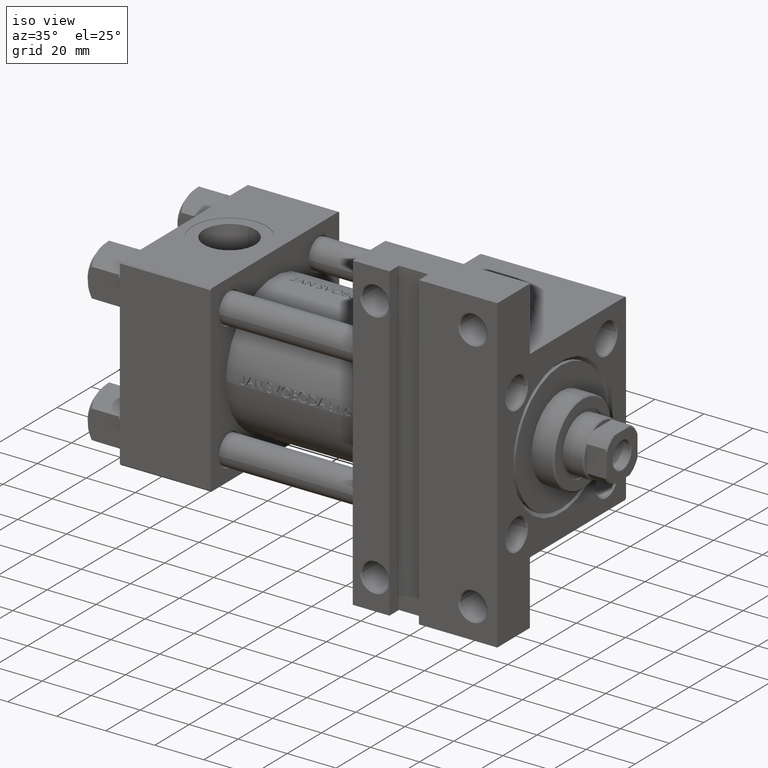
[diagram: clean part render]
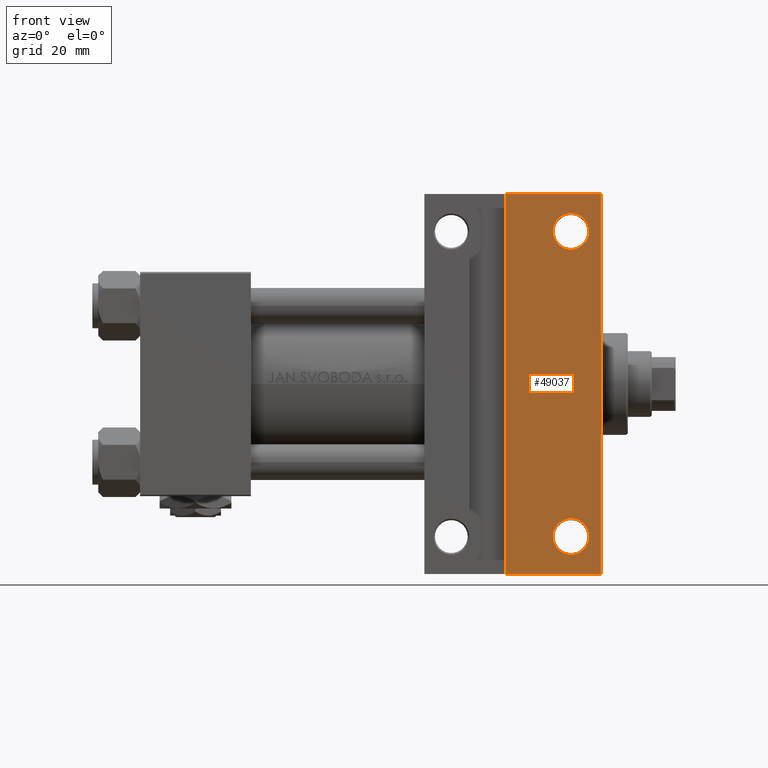
[diagram: tour spotlight — one face highlighted and labeled with its STEP entity id]
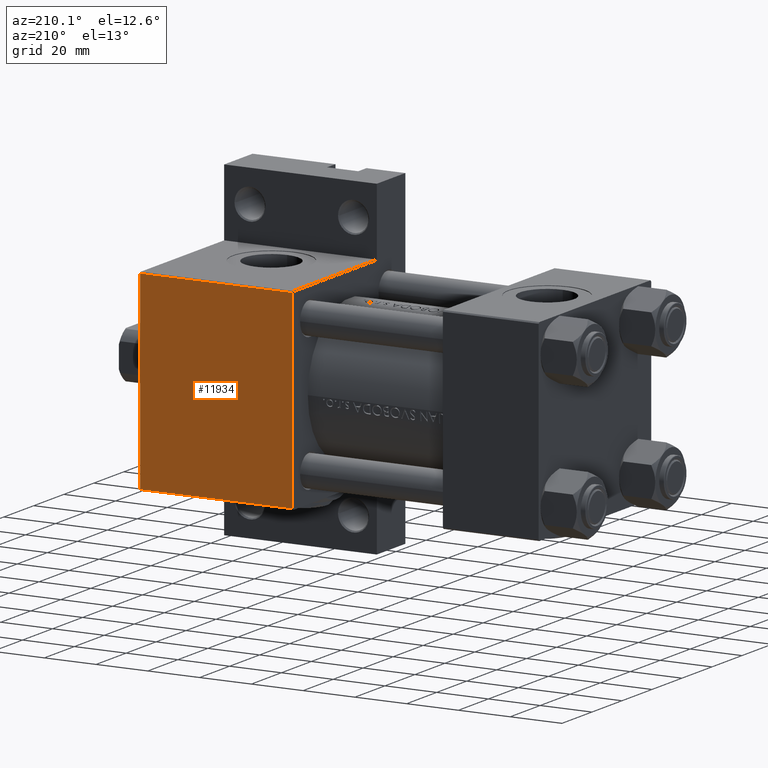
[diagram: tour spotlight — one face highlighted and labeled with its STEP entity id]
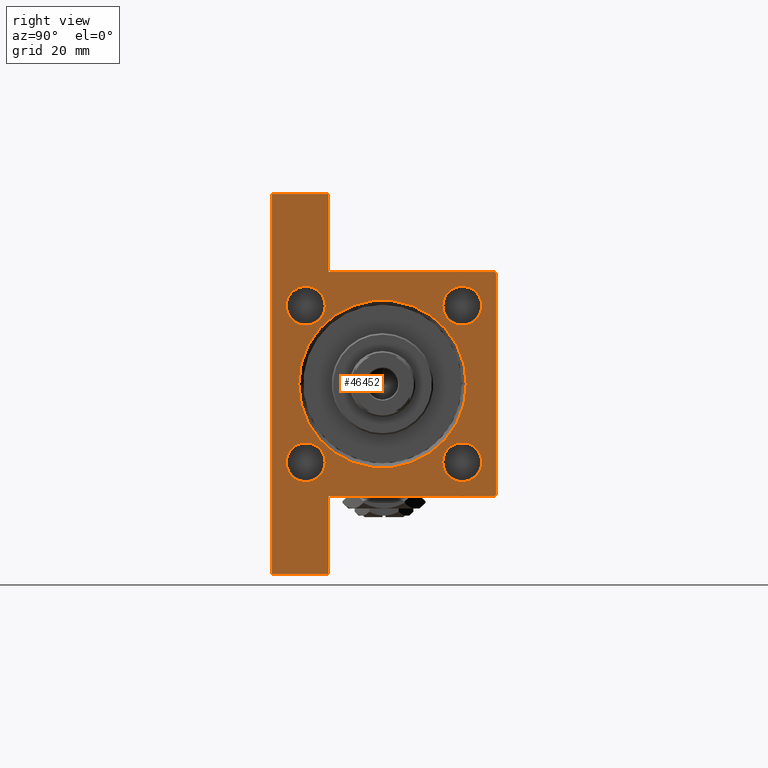
[diagram: tour spotlight — one face highlighted and labeled with its STEP entity id]
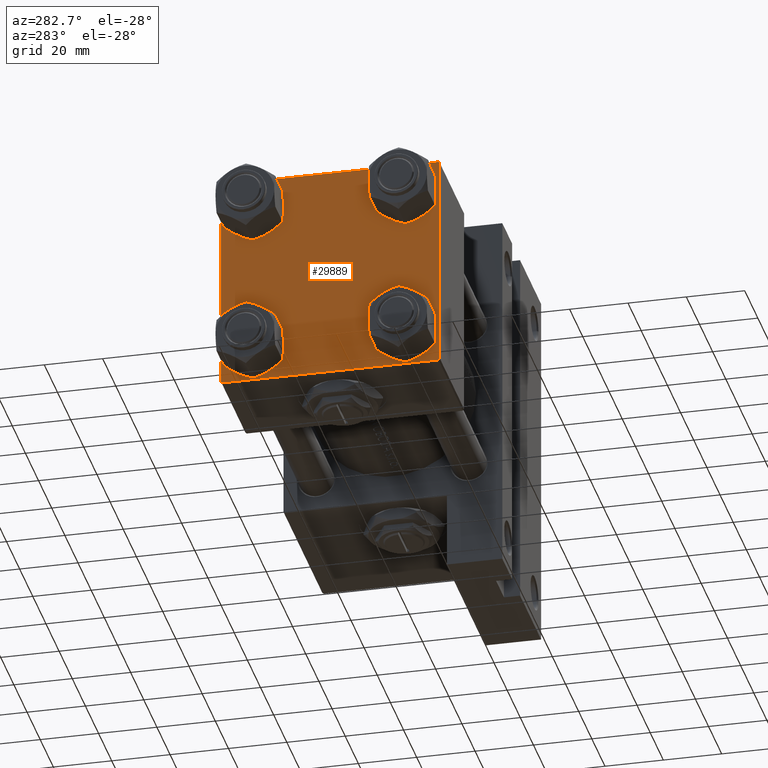
[diagram: tour spotlight — one face highlighted and labeled with its STEP entity id]
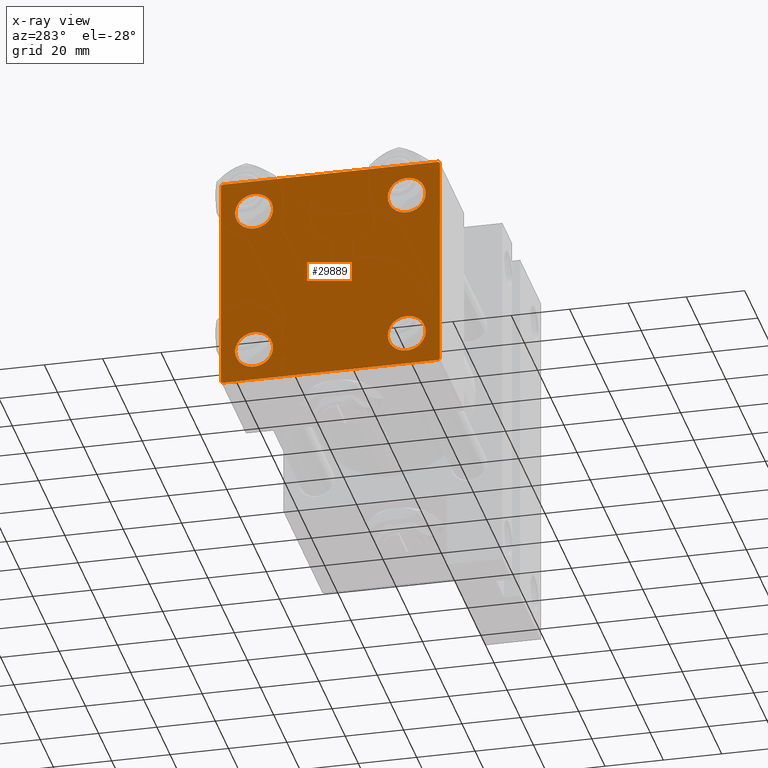
[diagram: x-ray of the same camera — body ghosted, this tour face saturated]
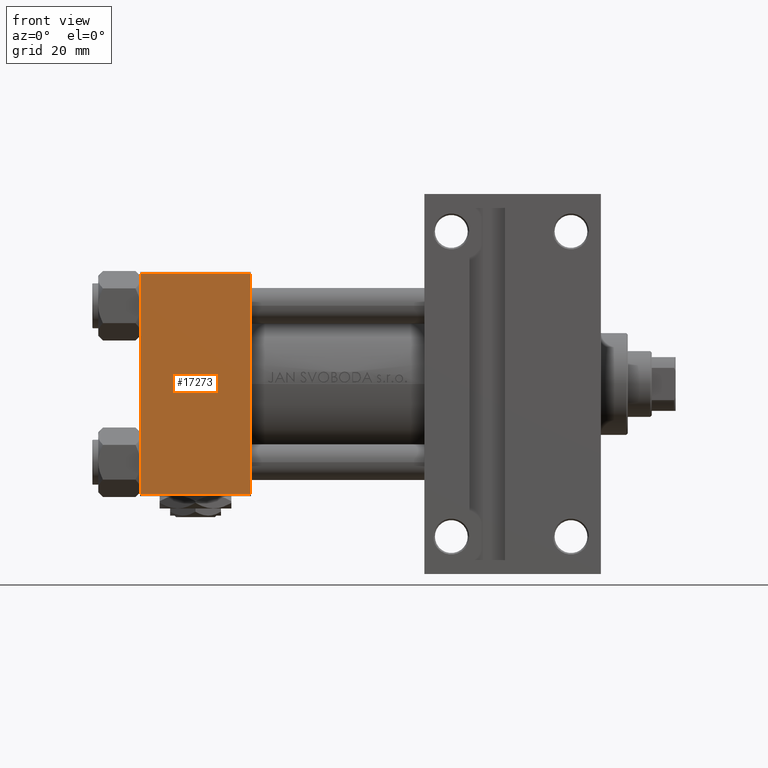
[diagram: tour spotlight — one face highlighted and labeled with its STEP entity id]
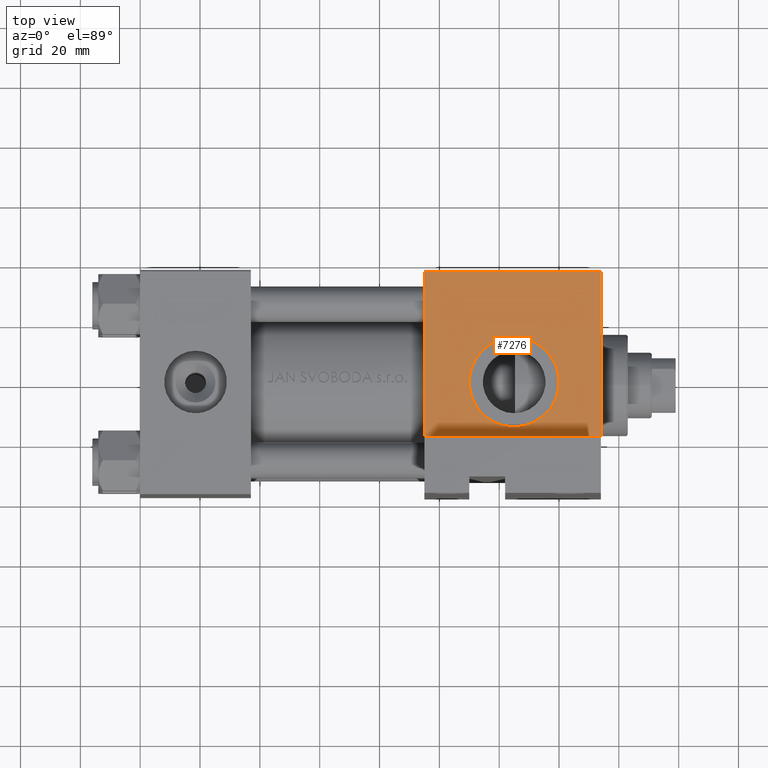
[diagram: tour spotlight — one face highlighted and labeled with its STEP entity id]
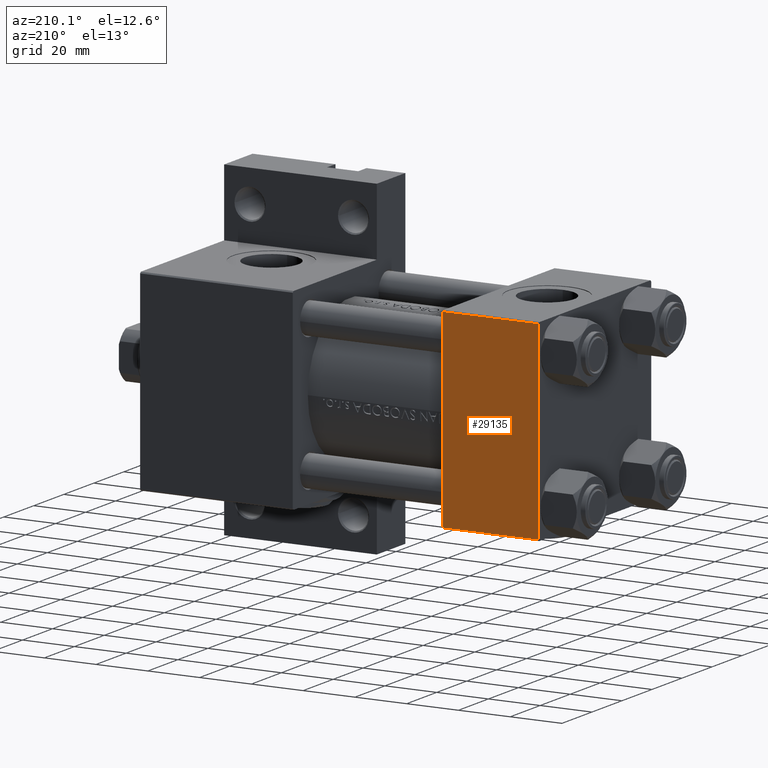
[diagram: tour spotlight — one face highlighted and labeled with its STEP entity id]
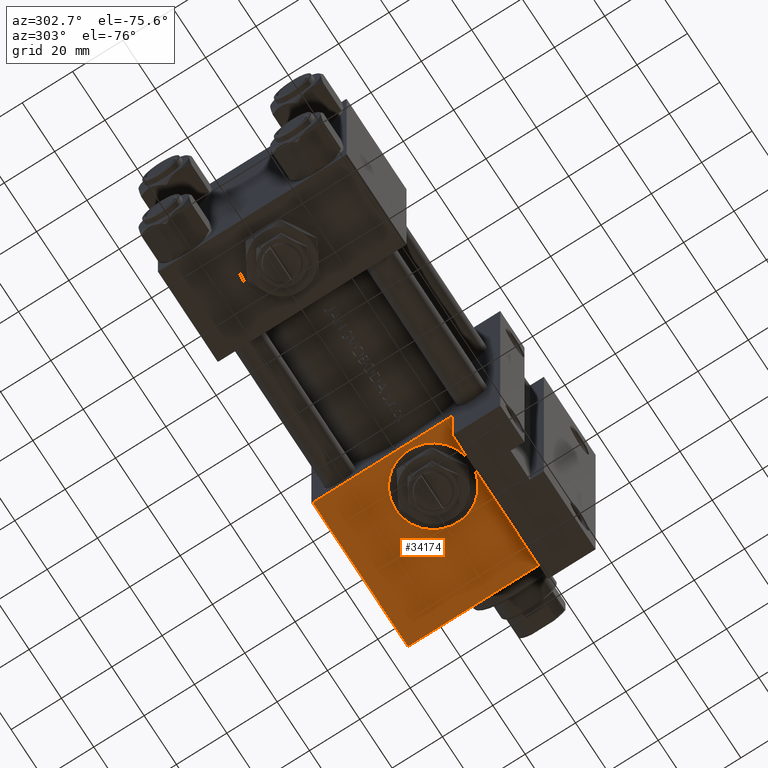
[diagram: tour spotlight — one face highlighted and labeled with its STEP entity id]
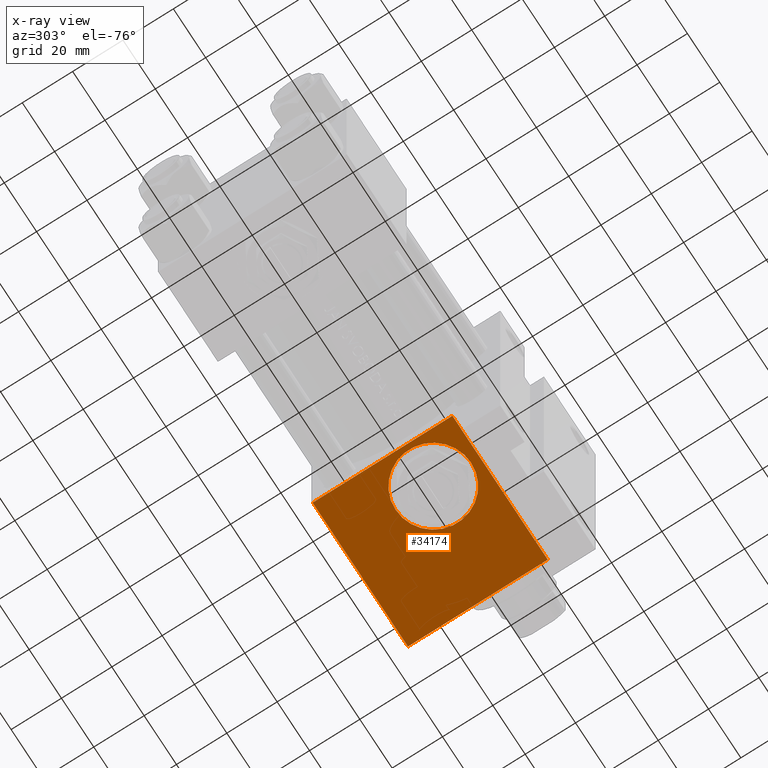
[diagram: x-ray of the same camera — body ghosted, this tour face saturated]
A machine part: a face-by-face anatomy tour. The part has 1199 B-rep faces; the first image is the clean iso view, then the 8 largest visible faces are spotlighted one at a time (largest first), each with its STEP entity span.

Face 1 — front view, entity #49037. In plain terms, the highlighted planar face has unit normal (0, -1, 0).
Definition (entity closure, byte-faithful):
#526 = DIRECTION ( 'NONE',  ( -0.000000000000000000, -0.000000000000000000, 1.000000000000000000 ) ) ;
#574 = DIRECTION ( 'NONE',  ( -0.000000000000000000, -0.000000000000000000, 1.000000000000000000 ) ) ;
#647 = EDGE_LOOP ( 'NONE', ( #33340, #16382 ) ) ;
#1833 = CARTESIAN_POINT ( 'NONE',  ( 154.0000000000000000, 37.50000000000000000, -37.50000000000000000 ) ) ;
#1846 = ORIENTED_EDGE ( 'NONE', *, *, #23392, .T. ) ;
#1998 = DIRECTION ( 'NONE',  ( -0.000000000000000000, -0.000000000000000000, 1.000000000000000000 ) ) ;
#2243 = DIRECTION ( 'NONE',  ( -1.000000000000000000, 0.000000000000000000, 0.000000000000000000 ) ) ;
#3293 = AXIS2_PLACEMENT_3D ( 'NONE', #45177, #1998, #2243 ) ;
#3605 = CARTESIAN_POINT ( 'NONE',  ( 143.9999999999999716, 51.00000000000000000, -37.50000000000000000 ) ) ;
#3850 = VERTEX_POINT ( 'NONE', #7506 ) ;
#3936 = EDGE_LOOP ( 'NONE', ( #35876, #29696 ) ) ;
#4034 = DIRECTION ( 'NONE',  ( -1.000000000000000000, 0.000000000000000000, 0.000000000000000000 ) ) ;
#4488 = AXIS2_PLACEMENT_3D ( 'NONE', #22050, #40896, #29334 ) ;
#5734 = FACE_OUTER_BOUND ( 'NONE', #19948, .T. ) ;
#6302 = CARTESIAN_POINT ( 'NONE',  ( 138.0004999999999598, -51.00000000000000000, -37.50000000000000000 ) ) ;
#7506 = CARTESIAN_POINT ( 'NONE',  ( 154.0000000000000000, 63.50000000000000000, -37.50000000000000000 ) ) ;
#8342 = VECTOR ( 'NONE', #32944, 1000.000000000000000 ) ;
#8541 = CARTESIAN_POINT ( 'NONE',  ( 143.9999999999999716, -51.00000000000000000, -37.50000000000000000 ) ) ;
#9921 = VECTOR ( 'NONE', #15415, 1000.000000000000000 ) ;
#10214 = CIRCLE ( 'NONE', #39070, 5.999499999999990507 ) ;
#10701 = CIRCLE ( 'NONE', #40381, 5.999499999999990507 ) ;
#12525 = EDGE_CURVE ( 'NONE', #48733, #47232, #10214, .T. ) ;
#13864 = LINE ( 'NONE', #1833, #8342 ) ;
#14608 = CARTESIAN_POINT ( 'NONE',  ( 138.0004999999999598, 51.00000000000000000, -37.50000000000000000 ) ) ;
#15196 = DIRECTION ( 'NONE',  ( -0.000000000000000000, -1.000000000000000000, -0.000000000000000000 ) ) ;
#15415 = DIRECTION ( 'NONE',  ( -1.000000000000000000, 4.704334850106596780E-16, -0.000000000000000000 ) ) ;
#16382 = ORIENTED_EDGE ( 'NONE', *, *, #12525, .T. ) ;
#16864 = DIRECTION ( 'NONE',  ( 1.000000000000000000, 0.000000000000000000, 0.000000000000000000 ) ) ;
#17122 = LINE ( 'NONE', #43282, #38318 ) ;
#18334 = CARTESIAN_POINT ( 'NONE',  ( 149.9994999999999550, 51.00000000000000000, -37.50000000000000000 ) ) ;
#18639 = VERTEX_POINT ( 'NONE', #38806 ) ;
#19948 = EDGE_LOOP ( 'NONE', ( #20858, #26588, #1846, #39757 ) ) ;
#20542 = CARTESIAN_POINT ( 'NONE',  ( 153.9999999999999716, -63.50000000000002842, -37.50000000000000000 ) ) ;
#20711 = AXIS2_PLACEMENT_3D ( 'NONE', #8541, #526, #4034 ) ;
#20858 = ORIENTED_EDGE ( 'NONE', *, *, #38704, .F. ) ;
#21045 = PLANE ( 'NONE',  #4488 ) ;
#21546 = FACE_BOUND ( 'NONE', #647, .T. ) ;
#22050 = CARTESIAN_POINT ( 'NONE',  ( 154.0000000000000000, 37.50000000000000000, -37.50000000000000000 ) ) ;
#22523 = CIRCLE ( 'NONE', #3293, 5.999499999999990507 ) ;
#22911 = DIRECTION ( 'NONE',  ( -1.000000000000000000, 0.000000000000000000, 0.000000000000000000 ) ) ;
#22965 = CARTESIAN_POINT ( 'NONE',  ( 94.99999999999998579, -63.50000000000000000, -37.50000000000000000 ) ) ;
#23392 = EDGE_CURVE ( 'NONE', #3850, #37176, #13864, .T. ) ;
#25178 = VERTEX_POINT ( 'NONE', #6302 ) ;
#25285 = EDGE_CURVE ( 'NONE', #25178, #18639, #26254, .T. ) ;
#26254 = CIRCLE ( 'NONE', #20711, 5.999499999999990507 ) ;
#26588 = ORIENTED_EDGE ( 'NONE', *, *, #43273, .T. ) ;
#29334 = DIRECTION ( 'NONE',  ( -1.000000000000000000, 0.000000000000000000, -0.000000000000000000 ) ) ;
#29398 = EDGE_CURVE ( 'NONE', #47232, #48733, #22523, .T. ) ;
#29554 = CARTESIAN_POINT ( 'NONE',  ( 122.0000000000000000, 63.50000000000000000, -37.50000000000000000 ) ) ;
#29696 = ORIENTED_EDGE ( 'NONE', *, *, #38594, .T. ) ;
#32277 = VERTEX_POINT ( 'NONE', #29554 ) ;
#32807 = DIRECTION ( 'NONE',  ( -0.000000000000000000, -0.000000000000000000, 1.000000000000000000 ) ) ;
#32944 = DIRECTION ( 'NONE',  ( 0.000000000000000000, -1.000000000000000000, 0.000000000000000000 ) ) ;
#33340 = ORIENTED_EDGE ( 'NONE', *, *, #29398, .T. ) ;
#34678 = CARTESIAN_POINT ( 'NONE',  ( 122.0000000000000000, -63.50000000000000000, -37.50000000000000000 ) ) ;
#35020 = LINE ( 'NONE', #22965, #9921 ) ;
#35302 = EDGE_CURVE ( 'NONE', #37176, #36044, #35020, .T. ) ;
#35876 = ORIENTED_EDGE ( 'NONE', *, *, #25285, .T. ) ;
#36044 = VERTEX_POINT ( 'NONE', #34678 ) ;
#36363 = VECTOR ( 'NONE', #15196, 1000.000000000000000 ) ;
#36627 = FACE_BOUND ( 'NONE', #3936, .T. ) ;
#37176 = VERTEX_POINT ( 'NONE', #20542 ) ;
#37591 = DIRECTION ( 'NONE',  ( -1.000000000000000000, 0.000000000000000000, 0.000000000000000000 ) ) ;
#38318 = VECTOR ( 'NONE', #16864, 1000.000000000000000 ) ;
#38594 = EDGE_CURVE ( 'NONE', #18639, #25178, #10701, .T. ) ;
#38704 = EDGE_CURVE ( 'NONE', #32277, #36044, #38816, .T. ) ;
#38806 = CARTESIAN_POINT ( 'NONE',  ( 149.9994999999999550, -51.00000000000000000, -37.50000000000000000 ) ) ;
#38816 = LINE ( 'NONE', #49408, #36363 ) ;
#39070 = AXIS2_PLACEMENT_3D ( 'NONE', #3605, #574, #22911 ) ;
#39757 = ORIENTED_EDGE ( 'NONE', *, *, #35302, .T. ) ;
#40381 = AXIS2_PLACEMENT_3D ( 'NONE', #47921, #32807, #37591 ) ;
#40896 = DIRECTION ( 'NONE',  ( 0.000000000000000000, 0.000000000000000000, -1.000000000000000000 ) ) ;
#43273 = EDGE_CURVE ( 'NONE', #32277, #3850, #17122, .T. ) ;
#43282 = CARTESIAN_POINT ( 'NONE',  ( 95.00000000000000000, 63.50000000000000000, -37.50000000000000000 ) ) ;
#45177 = CARTESIAN_POINT ( 'NONE',  ( 143.9999999999999716, 51.00000000000000000, -37.50000000000000000 ) ) ;
#47232 = VERTEX_POINT ( 'NONE', #14608 ) ;
#47921 = CARTESIAN_POINT ( 'NONE',  ( 143.9999999999999716, -51.00000000000000000, -37.50000000000000000 ) ) ;
#48733 = VERTEX_POINT ( 'NONE', #18334 ) ;
#49037 = ADVANCED_FACE ( 'NONE', ( #5734, #36627, #21546 ), #21045, .T. ) ;
#49408 = CARTESIAN_POINT ( 'NONE',  ( 122.0000000000000000, -63.50000000000000000, -37.50000000000000000 ) ) ;

Face 2 — auxiliary view, entity #11934. In plain terms, the highlighted planar face has unit normal (0, -1, -0).
Definition (entity closure, byte-faithful):
#1059 = EDGE_CURVE ( 'NONE', #13842, #29581, #30758, .T. ) ;
#1283 = CARTESIAN_POINT ( 'NONE',  ( 95.00000000000000000, 37.00000000000000000, 37.49999999999999289 ) ) ;
#1525 = DIRECTION ( 'NONE',  ( -1.000000000000000000, 0.000000000000000000, 0.000000000000000000 ) ) ;
#3470 = CARTESIAN_POINT ( 'NONE',  ( 154.0000000000000000, 37.00000000000000000, 37.49999999999999289 ) ) ;
#3694 = DIRECTION ( 'NONE',  ( 0.000000000000000000, -1.000000000000000000, -1.850371707708594316E-16 ) ) ;
#4504 = EDGE_CURVE ( 'NONE', #13842, #27001, #40191, .T. ) ;
#5079 = VECTOR ( 'NONE', #3694, 1000.000000000000000 ) ;
#5845 = CARTESIAN_POINT ( 'NONE',  ( 95.00000000000000000, 37.00000000000000000, 37.49999999999999289 ) ) ;
#6079 = VECTOR ( 'NONE', #1525, 1000.000000000000000 ) ;
#8822 = PLANE ( 'NONE',  #11982 ) ;
#11934 = ADVANCED_FACE ( 'NONE', ( #23646 ), #8822, .F. ) ;
#11982 = AXIS2_PLACEMENT_3D ( 'NONE', #19868, #39962, #12601 ) ;
#12601 = DIRECTION ( 'NONE',  ( 0.000000000000000000, 1.000000000000000000, 1.850371707708594316E-16 ) ) ;
#12735 = CARTESIAN_POINT ( 'NONE',  ( 154.0000000000000000, -36.99999999999997158, 37.49999999999997868 ) ) ;
#13842 = VERTEX_POINT ( 'NONE', #3470 ) ;
#15689 = DIRECTION ( 'NONE',  ( 0.000000000000000000, -1.000000000000000000, -1.850371707708594316E-16 ) ) ;
#19042 = EDGE_CURVE ( 'NONE', #44922, #29581, #47840, .T. ) ;
#19423 = ORIENTED_EDGE ( 'NONE', *, *, #1059, .F. ) ;
#19868 = CARTESIAN_POINT ( 'NONE',  ( 154.0000000000000000, 37.50000000000000000, 37.49999999999999289 ) ) ;
#20932 = DIRECTION ( 'NONE',  ( 1.000000000000000000, 0.000000000000000000, 0.000000000000000000 ) ) ;
#20963 = ORIENTED_EDGE ( 'NONE', *, *, #4504, .T. ) ;
#23646 = FACE_OUTER_BOUND ( 'NONE', #42421, .T. ) ;
#25787 = CARTESIAN_POINT ( 'NONE',  ( 95.00000000000000000, 37.50000000000000000, 37.49999999999999289 ) ) ;
#26780 = LINE ( 'NONE', #25787, #5079 ) ;
#26828 = VECTOR ( 'NONE', #20932, 1000.000000000000000 ) ;
#27001 = VERTEX_POINT ( 'NONE', #5845 ) ;
#27007 = CARTESIAN_POINT ( 'NONE',  ( 154.0000000000000000, 37.50000000000000000, 37.49999999999999289 ) ) ;
#29581 = VERTEX_POINT ( 'NONE', #12735 ) ;
#30531 = CARTESIAN_POINT ( 'NONE',  ( 95.00000000000000000, -36.99999999999997158, 37.49999999999997868 ) ) ;
#30758 = LINE ( 'NONE', #27007, #48400 ) ;
#35712 = EDGE_CURVE ( 'NONE', #27001, #44922, #26780, .T. ) ;
#37971 = ORIENTED_EDGE ( 'NONE', *, *, #35712, .T. ) ;
#39962 = DIRECTION ( 'NONE',  ( 0.000000000000000000, 1.850371707708594316E-16, -1.000000000000000000 ) ) ;
#40191 = LINE ( 'NONE', #1283, #6079 ) ;
#42421 = EDGE_LOOP ( 'NONE', ( #19423, #20963, #37971, #48543 ) ) ;
#43563 = CARTESIAN_POINT ( 'NONE',  ( 154.0000000000000000, -36.99999999999997158, 37.49999999999997868 ) ) ;
#44922 = VERTEX_POINT ( 'NONE', #30531 ) ;
#47840 = LINE ( 'NONE', #43563, #26828 ) ;
#48400 = VECTOR ( 'NONE', #15689, 1000.000000000000000 ) ;
#48543 = ORIENTED_EDGE ( 'NONE', *, *, #19042, .T. ) ;

Face 3 — right view, entity #46452. In plain terms, the highlighted planar face has unit normal (-1, 0, 0).
Definition (entity closure, byte-faithful):
#262 = ORIENTED_EDGE ( 'NONE', *, *, #2590, .T. ) ;
#466 = EDGE_CURVE ( 'NONE', #8834, #42672, #44218, .T. ) ;
#719 = EDGE_CURVE ( 'NONE', #12675, #9624, #44630, .T. ) ;
#834 = LINE ( 'NONE', #45801, #27707 ) ;
#1028 = CARTESIAN_POINT ( 'NONE',  ( 153.9999999999999716, -63.50000000000002842, -18.50000000000000000 ) ) ;
#1059 = EDGE_CURVE ( 'NONE', #13842, #29581, #30758, .T. ) ;
#1184 = CARTESIAN_POINT ( 'NONE',  ( 154.0000000000000000, 0.000000000000000000, -0.5000000000000004441 ) ) ;
#1399 = VECTOR ( 'NONE', #7183, 1000.000000000000000 ) ;
#1518 = FACE_BOUND ( 'NONE', #48561, .T. ) ;
#1545 = CARTESIAN_POINT ( 'NONE',  ( 154.0000000000000000, -37.50000000000000000, 36.99999999999997868 ) ) ;
#1833 = CARTESIAN_POINT ( 'NONE',  ( 154.0000000000000000, 37.50000000000000000, -37.50000000000000000 ) ) ;
#1848 = CARTESIAN_POINT ( 'NONE',  ( 154.0000000000000000, -26.14999999999999147, 32.64999999999999858 ) ) ;
#1934 = DIRECTION ( 'NONE',  ( 0.000000000000000000, 0.000000000000000000, 1.000000000000000000 ) ) ;
#2280 = EDGE_CURVE ( 'NONE', #33655, #37176, #834, .T. ) ;
#2590 = EDGE_CURVE ( 'NONE', #24446, #16361, #29169, .T. ) ;
#2728 = VERTEX_POINT ( 'NONE', #35414 ) ;
#3470 = CARTESIAN_POINT ( 'NONE',  ( 154.0000000000000000, 37.00000000000000000, 37.49999999999999289 ) ) ;
#3471 = DIRECTION ( 'NONE',  ( -1.000000000000000000, -0.000000000000000000, 0.000000000000000000 ) ) ;
#3490 = VECTOR ( 'NONE', #7738, 1000.000000000000000 ) ;
#3850 = VERTEX_POINT ( 'NONE', #7506 ) ;
#4227 = AXIS2_PLACEMENT_3D ( 'NONE', #20787, #43928, #21027 ) ;
#4461 = DIRECTION ( 'NONE',  ( 0.000000000000000000, 0.000000000000000000, 1.000000000000000000 ) ) ;
#4977 = EDGE_CURVE ( 'NONE', #24446, #3850, #17463, .T. ) ;
#5477 = VERTEX_POINT ( 'NONE', #1545 ) ;
#5664 = ORIENTED_EDGE ( 'NONE', *, *, #14296, .T. ) ;
#5933 = DIRECTION ( 'NONE',  ( -1.000000000000000000, -0.000000000000000000, 0.000000000000000000 ) ) ;
#6023 = FACE_BOUND ( 'NONE', #28668, .T. ) ;
#6718 = EDGE_CURVE ( 'NONE', #45387, #33655, #22314, .T. ) ;
#7105 = LINE ( 'NONE', #15554, #24378 ) ;
#7183 = DIRECTION ( 'NONE',  ( 0.000000000000000000, 0.000000000000000000, -1.000000000000000000 ) ) ;
#7506 = CARTESIAN_POINT ( 'NONE',  ( 154.0000000000000000, 63.50000000000000000, -37.50000000000000000 ) ) ;
#7507 = CIRCLE ( 'NONE', #10707, 6.500000000000002665 ) ;
#7738 = DIRECTION ( 'NONE',  ( -0.000000000000000000, -1.000000000000000000, -0.000000000000000000 ) ) ;
#7776 = CARTESIAN_POINT ( 'NONE',  ( 153.9999999999999716, 37.50000000000000711, -18.50000000000000000 ) ) ;
#8342 = VECTOR ( 'NONE', #32944, 1000.000000000000000 ) ;
#8472 = DIRECTION ( 'NONE',  ( -1.000000000000000000, -0.000000000000000000, 0.000000000000000000 ) ) ;
#8834 = VERTEX_POINT ( 'NONE', #37715 ) ;
#9577 = CARTESIAN_POINT ( 'NONE',  ( 154.0000000000000000, 0.000000000000000000, -28.49999999999999645 ) ) ;
#9580 = EDGE_CURVE ( 'NONE', #34552, #46078, #42597, .T. ) ;
#9624 = VERTEX_POINT ( 'NONE', #28770 ) ;
#10407 = ORIENTED_EDGE ( 'NONE', *, *, #9580, .T. ) ;
#10421 = DIRECTION ( 'NONE',  ( 0.000000000000000000, 0.000000000000000000, 1.000000000000000000 ) ) ;
#10707 = AXIS2_PLACEMENT_3D ( 'NONE', #26717, #42052, #10912 ) ;
#10912 = DIRECTION ( 'NONE',  ( 0.000000000000000000, 0.000000000000000000, 1.000000000000000000 ) ) ;
#11383 = DIRECTION ( 'NONE',  ( 0.000000000000000000, 0.000000000000000000, -1.000000000000000000 ) ) ;
#11990 = CARTESIAN_POINT ( 'NONE',  ( 154.0000000000000000, 63.50000000000000000, -18.50000000000000000 ) ) ;
#12675 = VERTEX_POINT ( 'NONE', #9577 ) ;
#12735 = CARTESIAN_POINT ( 'NONE',  ( 154.0000000000000000, -36.99999999999997158, 37.49999999999997868 ) ) ;
#13842 = VERTEX_POINT ( 'NONE', #3470 ) ;
#13864 = LINE ( 'NONE', #1833, #8342 ) ;
#14288 = ORIENTED_EDGE ( 'NONE', *, *, #2280, .T. ) ;
#14296 = EDGE_CURVE ( 'NONE', #5477, #45387, #26017, .T. ) ;
#14374 = CARTESIAN_POINT ( 'NONE',  ( 154.0000000000000000, -26.14999999999999147, 19.64999999999999503 ) ) ;
#14978 = VECTOR ( 'NONE', #44519, 1000.000000000000000 ) ;
#15554 = CARTESIAN_POINT ( 'NONE',  ( 154.0000000000000000, 37.00000000000000000, 37.49999999999999289 ) ) ;
#15689 = DIRECTION ( 'NONE',  ( 0.000000000000000000, -1.000000000000000000, -1.850371707708594316E-16 ) ) ;
#16361 = VERTEX_POINT ( 'NONE', #7776 ) ;
#16500 = ORIENTED_EDGE ( 'NONE', *, *, #6718, .T. ) ;
#16584 = CARTESIAN_POINT ( 'NONE',  ( 154.0000000000000000, -26.15000000000000213, -26.15000000000000213 ) ) ;
#16612 = VECTOR ( 'NONE', #43955, 1000.000000000000000 ) ;
#16697 = ORIENTED_EDGE ( 'NONE', *, *, #33920, .T. ) ;
#17176 = EDGE_CURVE ( 'NONE', #2728, #13842, #7105, .T. ) ;
#17207 = DIRECTION ( 'NONE',  ( -1.000000000000000000, -0.000000000000000000, 0.000000000000000000 ) ) ;
#17234 = CARTESIAN_POINT ( 'NONE',  ( 154.0000000000000000, -26.15000000000000213, -32.65000000000001279 ) ) ;
#17307 = CIRCLE ( 'NONE', #41395, 6.500000000000002665 ) ;
#17316 = FACE_BOUND ( 'NONE', #17936, .T. ) ;
#17463 = LINE ( 'NONE', #29761, #34162 ) ;
#17495 = EDGE_CURVE ( 'NONE', #9624, #12675, #32400, .T. ) ;
#17936 = EDGE_LOOP ( 'NONE', ( #10407, #29848 ) ) ;
#18044 = CARTESIAN_POINT ( 'NONE',  ( 154.0000000000000000, 26.14999999999999858, 32.65000000000000568 ) ) ;
#18477 = LINE ( 'NONE', #37822, #1399 ) ;
#18768 = DIRECTION ( 'NONE',  ( 0.000000000000000000, 0.000000000000000000, 1.000000000000000000 ) ) ;
#19606 = ORIENTED_EDGE ( 'NONE', *, *, #47512, .T. ) ;
#19962 = ORIENTED_EDGE ( 'NONE', *, *, #41596, .T. ) ;
#20542 = CARTESIAN_POINT ( 'NONE',  ( 153.9999999999999716, -63.50000000000002842, -37.50000000000000000 ) ) ;
#20787 = CARTESIAN_POINT ( 'NONE',  ( 154.0000000000000000, 26.14999999999999858, -26.15000000000000213 ) ) ;
#20807 = DIRECTION ( 'NONE',  ( 0.000000000000000000, 0.000000000000000000, 1.000000000000000000 ) ) ;
#20927 = ORIENTED_EDGE ( 'NONE', *, *, #23392, .F. ) ;
#21027 = DIRECTION ( 'NONE',  ( 0.000000000000000000, 0.000000000000000000, 1.000000000000000000 ) ) ;
#22166 = EDGE_LOOP ( 'NONE', ( #40992, #24640, #39177, #19962, #5664, #16500, #14288, #20927, #26133, #262 ) ) ;
#22314 = LINE ( 'NONE', #49698, #3490 ) ;
#22352 = ORIENTED_EDGE ( 'NONE', *, *, #719, .T. ) ;
#22380 = EDGE_CURVE ( 'NONE', #27566, #41990, #7507, .T. ) ;
#23129 = CARTESIAN_POINT ( 'NONE',  ( 154.0000000000000000, 26.14999999999999858, -19.64999999999999858 ) ) ;
#23356 = ORIENTED_EDGE ( 'NONE', *, *, #17495, .T. ) ;
#23392 = EDGE_CURVE ( 'NONE', #3850, #37176, #13864, .T. ) ;
#24378 = VECTOR ( 'NONE', #46707, 1000.000000000000114 ) ;
#24446 = VERTEX_POINT ( 'NONE', #11990 ) ;
#24611 = EDGE_CURVE ( 'NONE', #46078, #34552, #43185, .T. ) ;
#24640 = ORIENTED_EDGE ( 'NONE', *, *, #17176, .T. ) ;
#24862 = DIRECTION ( 'NONE',  ( -1.000000000000000000, -0.000000000000000000, 0.000000000000000000 ) ) ;
#25262 = CARTESIAN_POINT ( 'NONE',  ( 154.0000000000000000, -37.50000000000000000, 37.49999999999997868 ) ) ;
#26017 = LINE ( 'NONE', #25262, #36269 ) ;
#26133 = ORIENTED_EDGE ( 'NONE', *, *, #4977, .F. ) ;
#26479 = EDGE_CURVE ( 'NONE', #2728, #16361, #18477, .T. ) ;
#26717 = CARTESIAN_POINT ( 'NONE',  ( 154.0000000000000000, -26.15000000000000213, -26.15000000000000213 ) ) ;
#27007 = CARTESIAN_POINT ( 'NONE',  ( 154.0000000000000000, 37.50000000000000000, 37.49999999999999289 ) ) ;
#27306 = DIRECTION ( 'NONE',  ( 0.000000000000000000, 0.000000000000000000, 1.000000000000000000 ) ) ;
#27552 = CARTESIAN_POINT ( 'NONE',  ( 154.0000000000000000, 0.000000000000000000, -0.5000000000000004441 ) ) ;
#27566 = VERTEX_POINT ( 'NONE', #48437 ) ;
#27707 = VECTOR ( 'NONE', #11383, 1000.000000000000000 ) ;
#28383 = PLANE ( 'NONE',  #48531 ) ;
#28668 = EDGE_LOOP ( 'NONE', ( #19606, #44465 ) ) ;
#28770 = CARTESIAN_POINT ( 'NONE',  ( 154.0000000000000000, 3.429011037612588881E-15, 27.49999999999999645 ) ) ;
#29119 = FACE_BOUND ( 'NONE', #31719, .T. ) ;
#29169 = LINE ( 'NONE', #33445, #14978 ) ;
#29442 = CARTESIAN_POINT ( 'NONE',  ( 154.0000000000000000, -37.50000000000000711, -18.50000000000000355 ) ) ;
#29581 = VERTEX_POINT ( 'NONE', #12735 ) ;
#29761 = CARTESIAN_POINT ( 'NONE',  ( 154.0000000000000000, 63.50000000000000000, -18.50000000000000000 ) ) ;
#29771 = CARTESIAN_POINT ( 'NONE',  ( 154.0000000000000000, -26.14999999999999147, 26.14999999999999503 ) ) ;
#29848 = ORIENTED_EDGE ( 'NONE', *, *, #24611, .T. ) ;
#30661 = CIRCLE ( 'NONE', #4227, 6.500000000000002665 ) ;
#30758 = LINE ( 'NONE', #27007, #48400 ) ;
#30764 = DIRECTION ( 'NONE',  ( -1.000000000000000000, -0.000000000000000000, 0.000000000000000000 ) ) ;
#31020 = DIRECTION ( 'NONE',  ( 0.000000000000000000, 0.000000000000000000, 1.000000000000000000 ) ) ;
#31033 = CIRCLE ( 'NONE', #37463, 6.500000000000002665 ) ;
#31719 = EDGE_LOOP ( 'NONE', ( #16697, #42573 ) ) ;
#31768 = AXIS2_PLACEMENT_3D ( 'NONE', #1184, #8472, #4461 ) ;
#32133 = FACE_OUTER_BOUND ( 'NONE', #22166, .T. ) ;
#32358 = CARTESIAN_POINT ( 'NONE',  ( 154.0000000000000000, 26.14999999999999858, 26.15000000000000213 ) ) ;
#32392 = FACE_BOUND ( 'NONE', #44646, .T. ) ;
#32400 = CIRCLE ( 'NONE', #41250, 27.99999999999999645 ) ;
#32767 = CARTESIAN_POINT ( 'NONE',  ( 154.0000000000000000, -26.14999999999999147, 26.14999999999999503 ) ) ;
#32944 = DIRECTION ( 'NONE',  ( 0.000000000000000000, -1.000000000000000000, 0.000000000000000000 ) ) ;
#32967 = AXIS2_PLACEMENT_3D ( 'NONE', #32358, #36128, #20807 ) ;
#33275 = CARTESIAN_POINT ( 'NONE',  ( 154.0000000000000000, 26.14999999999999858, -32.65000000000001279 ) ) ;
#33307 = CIRCLE ( 'NONE', #46164, 6.500000000000002665 ) ;
#33445 = CARTESIAN_POINT ( 'NONE',  ( 154.0000000000000000, 63.50000000000000000, -18.50000000000000000 ) ) ;
#33540 = DIRECTION ( 'NONE',  ( 0.000000000000000000, 0.000000000000000000, -1.000000000000000000 ) ) ;
#33655 = VERTEX_POINT ( 'NONE', #1028 ) ;
#33920 = EDGE_CURVE ( 'NONE', #45097, #36018, #30661, .T. ) ;
#34039 = DIRECTION ( 'NONE',  ( 0.000000000000000000, -9.251858538542972814E-17, -1.000000000000000000 ) ) ;
#34162 = VECTOR ( 'NONE', #33540, 1000.000000000000000 ) ;
#34552 = VERTEX_POINT ( 'NONE', #14374 ) ;
#34688 = ORIENTED_EDGE ( 'NONE', *, *, #466, .T. ) ;
#35414 = CARTESIAN_POINT ( 'NONE',  ( 154.0000000000000000, 37.50000000000000000, 36.99999999999999289 ) ) ;
#35932 = DIRECTION ( 'NONE',  ( 0.000000000000000000, 0.000000000000000000, 1.000000000000000000 ) ) ;
#36018 = VERTEX_POINT ( 'NONE', #23129 ) ;
#36128 = DIRECTION ( 'NONE',  ( -1.000000000000000000, -0.000000000000000000, 0.000000000000000000 ) ) ;
#36269 = VECTOR ( 'NONE', #34039, 1000.000000000000000 ) ;
#36640 = LINE ( 'NONE', #36877, #16612 ) ;
#36877 = CARTESIAN_POINT ( 'NONE',  ( 154.0000000000000000, -37.50000000000000000, 36.99999999999997868 ) ) ;
#36903 = DIRECTION ( 'NONE',  ( 0.000000000000000000, 0.000000000000000000, 1.000000000000000000 ) ) ;
#36948 = AXIS2_PLACEMENT_3D ( 'NONE', #32767, #17207, #10421 ) ;
#37156 = ORIENTED_EDGE ( 'NONE', *, *, #49249, .T. ) ;
#37176 = VERTEX_POINT ( 'NONE', #20542 ) ;
#37463 = AXIS2_PLACEMENT_3D ( 'NONE', #49639, #30764, #31020 ) ;
#37715 = CARTESIAN_POINT ( 'NONE',  ( 154.0000000000000000, 26.14999999999999858, 19.65000000000000213 ) ) ;
#37822 = CARTESIAN_POINT ( 'NONE',  ( 154.0000000000000000, 37.50000000000000000, 37.49999999999999289 ) ) ;
#38958 = DIRECTION ( 'NONE',  ( -1.000000000000000000, -0.000000000000000000, 0.000000000000000000 ) ) ;
#39177 = ORIENTED_EDGE ( 'NONE', *, *, #1059, .T. ) ;
#40992 = ORIENTED_EDGE ( 'NONE', *, *, #26479, .F. ) ;
#41250 = AXIS2_PLACEMENT_3D ( 'NONE', #27552, #49444, #27306 ) ;
#41395 = AXIS2_PLACEMENT_3D ( 'NONE', #45658, #3471, #18768 ) ;
#41596 = EDGE_CURVE ( 'NONE', #29581, #5477, #36640, .T. ) ;
#41990 = VERTEX_POINT ( 'NONE', #17234 ) ;
#42052 = DIRECTION ( 'NONE',  ( -1.000000000000000000, -0.000000000000000000, 0.000000000000000000 ) ) ;
#42175 = EDGE_CURVE ( 'NONE', #36018, #45097, #31033, .T. ) ;
#42573 = ORIENTED_EDGE ( 'NONE', *, *, #42175, .T. ) ;
#42597 = CIRCLE ( 'NONE', #36948, 6.500000000000002665 ) ;
#42672 = VERTEX_POINT ( 'NONE', #18044 ) ;
#43185 = CIRCLE ( 'NONE', #45583, 6.500000000000002665 ) ;
#43733 = CARTESIAN_POINT ( 'NONE',  ( 154.0000000000000000, 0.000000000000000000, 0.000000000000000000 ) ) ;
#43928 = DIRECTION ( 'NONE',  ( -1.000000000000000000, -0.000000000000000000, 0.000000000000000000 ) ) ;
#43955 = DIRECTION ( 'NONE',  ( -0.000000000000000000, -0.7071067811865672237, -0.7071067811865279218 ) ) ;
#44218 = CIRCLE ( 'NONE', #32967, 6.500000000000002665 ) ;
#44465 = ORIENTED_EDGE ( 'NONE', *, *, #22380, .T. ) ;
#44519 = DIRECTION ( 'NONE',  ( -1.067522139062650671E-15, -1.000000000000000000, 0.000000000000000000 ) ) ;
#44630 = CIRCLE ( 'NONE', #31768, 27.99999999999999645 ) ;
#44646 = EDGE_LOOP ( 'NONE', ( #22352, #23356 ) ) ;
#45097 = VERTEX_POINT ( 'NONE', #33275 ) ;
#45387 = VERTEX_POINT ( 'NONE', #29442 ) ;
#45583 = AXIS2_PLACEMENT_3D ( 'NONE', #29771, #5933, #1934 ) ;
#45658 = CARTESIAN_POINT ( 'NONE',  ( 154.0000000000000000, 26.14999999999999858, 26.15000000000000213 ) ) ;
#45801 = CARTESIAN_POINT ( 'NONE',  ( 153.9999999999999716, -63.50000000000002842, -18.50000000000000000 ) ) ;
#46078 = VERTEX_POINT ( 'NONE', #1848 ) ;
#46164 = AXIS2_PLACEMENT_3D ( 'NONE', #16584, #38958, #35932 ) ;
#46452 = ADVANCED_FACE ( 'NONE', ( #1518, #17316, #6023, #29119, #32392, #32133 ), #28383, .F. ) ;
#46707 = DIRECTION ( 'NONE',  ( 0.000000000000000000, -0.7071067811865474617, 0.7071067811865474617 ) ) ;
#47512 = EDGE_CURVE ( 'NONE', #41990, #27566, #33307, .T. ) ;
#48400 = VECTOR ( 'NONE', #15689, 1000.000000000000000 ) ;
#48437 = CARTESIAN_POINT ( 'NONE',  ( 154.0000000000000000, -26.15000000000000213, -19.64999999999999858 ) ) ;
#48531 = AXIS2_PLACEMENT_3D ( 'NONE', #43733, #24862, #36903 ) ;
#48561 = EDGE_LOOP ( 'NONE', ( #34688, #37156 ) ) ;
#49249 = EDGE_CURVE ( 'NONE', #42672, #8834, #17307, .T. ) ;
#49444 = DIRECTION ( 'NONE',  ( -1.000000000000000000, -0.000000000000000000, 0.000000000000000000 ) ) ;
#49639 = CARTESIAN_POINT ( 'NONE',  ( 154.0000000000000000, 26.14999999999999858, -26.15000000000000213 ) ) ;
#49698 = CARTESIAN_POINT ( 'NONE',  ( 153.9999999999999716, -63.50000000000002842, -18.50000000000000000 ) ) ;

Face 4 — auxiliary view, entity #29889. An x-ray twin of the same camera follows (body ghosted, this face saturated) — the face is partly hidden behind the body. In plain terms, the highlighted planar face has unit normal (-1, 0, -0).
Definition (entity closure, byte-faithful):
#136 = DIRECTION ( 'NONE',  ( 0.000000000000000000, -1.000000000000000000, -9.251858538542971581E-17 ) ) ;
#472 = DIRECTION ( 'NONE',  ( 0.000000000000000000, 0.7071067811865474617, -0.7071067811865474617 ) ) ;
#481 = EDGE_CURVE ( 'NONE', #15324, #35706, #32846, .T. ) ;
#646 = DIRECTION ( 'NONE',  ( 1.000000000000000000, -0.000000000000000000, 0.000000000000000000 ) ) ;
#1156 = CIRCLE ( 'NONE', #33241, 6.500000000000023093 ) ;
#1257 = FACE_OUTER_BOUND ( 'NONE', #34723, .T. ) ;
#1620 = CARTESIAN_POINT ( 'NONE',  ( 0.000000000000000000, -37.00000000000002132, -37.50000000000000711 ) ) ;
#1945 = DIRECTION ( 'NONE',  ( 1.000000000000000000, -0.000000000000000000, 0.000000000000000000 ) ) ;
#2246 = EDGE_CURVE ( 'NONE', #10621, #8253, #25307, .T. ) ;
#3432 = CARTESIAN_POINT ( 'NONE',  ( 0.000000000000000000, -26.14999999999999147, -26.15000000000000924 ) ) ;
#4416 = CARTESIAN_POINT ( 'NONE',  ( 0.000000000000000000, 37.49999999999999289, -36.99999999999998579 ) ) ;
#4877 = DIRECTION ( 'NONE',  ( 0.000000000000000000, 0.000000000000000000, 1.000000000000000000 ) ) ;
#5058 = CARTESIAN_POINT ( 'NONE',  ( 0.000000000000000000, 36.99999999999999289, 37.50000000000000000 ) ) ;
#5291 = EDGE_LOOP ( 'NONE', ( #11449, #15651 ) ) ;
#5359 = CARTESIAN_POINT ( 'NONE',  ( 0.000000000000000000, -37.50000000000000711, 37.49999999999999289 ) ) ;
#5448 = DIRECTION ( 'NONE',  ( 0.000000000000000000, 0.000000000000000000, 1.000000000000000000 ) ) ;
#5760 = VECTOR ( 'NONE', #472, 1000.000000000000114 ) ;
#6333 = ORIENTED_EDGE ( 'NONE', *, *, #12975, .F. ) ;
#6353 = VERTEX_POINT ( 'NONE', #29410 ) ;
#6581 = VECTOR ( 'NONE', #31066, 1000.000000000000114 ) ;
#6992 = VECTOR ( 'NONE', #13880, 1000.000000000000114 ) ;
#8253 = VERTEX_POINT ( 'NONE', #21576 ) ;
#8319 = CARTESIAN_POINT ( 'NONE',  ( 0.000000000000000000, 37.49999999999999289, 37.50000000000000000 ) ) ;
#8486 = VERTEX_POINT ( 'NONE', #29557 ) ;
#9098 = VERTEX_POINT ( 'NONE', #25611 ) ;
#9473 = CARTESIAN_POINT ( 'NONE',  ( 0.000000000000000000, 26.14999999999999858, 26.15000000000000213 ) ) ;
#10566 = VERTEX_POINT ( 'NONE', #36551 ) ;
#10621 = VERTEX_POINT ( 'NONE', #21224 ) ;
#10669 = CIRCLE ( 'NONE', #28327, 6.500000000000023093 ) ;
#11319 = EDGE_LOOP ( 'NONE', ( #23597, #38519 ) ) ;
#11320 = VECTOR ( 'NONE', #13286, 1000.000000000000000 ) ;
#11449 = ORIENTED_EDGE ( 'NONE', *, *, #15153, .T. ) ;
#11460 = VERTEX_POINT ( 'NONE', #18943 ) ;
#12394 = ORIENTED_EDGE ( 'NONE', *, *, #33547, .T. ) ;
#12517 = DIRECTION ( 'NONE',  ( 1.000000000000000000, -0.000000000000000000, 0.000000000000000000 ) ) ;
#12975 = EDGE_CURVE ( 'NONE', #35979, #35706, #40266, .T. ) ;
#13056 = EDGE_CURVE ( 'NONE', #35979, #35962, #48308, .T. ) ;
#13286 = DIRECTION ( 'NONE',  ( 0.000000000000000000, -0.7071067811865524577, 0.7071067811865426878 ) ) ;
#13539 = FACE_BOUND ( 'NONE', #11319, .T. ) ;
#13880 = DIRECTION ( 'NONE',  ( -0.000000000000000000, 0.7071067811865474617, 0.7071067811865474617 ) ) ;
#14032 = EDGE_CURVE ( 'NONE', #20941, #15433, #41882, .T. ) ;
#15153 = EDGE_CURVE ( 'NONE', #43731, #9098, #15425, .T. ) ;
#15324 = VERTEX_POINT ( 'NONE', #1620 ) ;
#15425 = CIRCLE ( 'NONE', #49162, 6.500000000000015987 ) ;
#15433 = VERTEX_POINT ( 'NONE', #45063 ) ;
#15651 = ORIENTED_EDGE ( 'NONE', *, *, #22018, .T. ) ;
#15948 = ORIENTED_EDGE ( 'NONE', *, *, #20768, .T. ) ;
#16298 = FACE_BOUND ( 'NONE', #33055, .T. ) ;
#16792 = DIRECTION ( 'NONE',  ( -0.000000000000000000, 0.000000000000000000, 1.000000000000000000 ) ) ;
#17377 = CARTESIAN_POINT ( 'NONE',  ( 0.000000000000000000, -37.00000000000000711, 37.49999999999999289 ) ) ;
#17761 = EDGE_CURVE ( 'NONE', #26579, #35962, #38799, .T. ) ;
#18244 = ORIENTED_EDGE ( 'NONE', *, *, #40256, .T. ) ;
#18508 = ORIENTED_EDGE ( 'NONE', *, *, #17761, .F. ) ;
#18676 = AXIS2_PLACEMENT_3D ( 'NONE', #19115, #34204, #45277 ) ;
#18943 = CARTESIAN_POINT ( 'NONE',  ( 0.000000000000000000, -26.14999999999999147, 19.64999999999999147 ) ) ;
#19115 = CARTESIAN_POINT ( 'NONE',  ( 0.000000000000000000, -26.14999999999999147, 26.15000000000000924 ) ) ;
#19348 = DIRECTION ( 'NONE',  ( 0.000000000000000000, 0.000000000000000000, -1.000000000000000000 ) ) ;
#19448 = CARTESIAN_POINT ( 'NONE',  ( 0.000000000000000000, 37.49999999999999289, 37.50000000000000000 ) ) ;
#19508 = CIRCLE ( 'NONE', #22741, 6.500000000000015987 ) ;
#19610 = LINE ( 'NONE', #8319, #27490 ) ;
#20768 = EDGE_CURVE ( 'NONE', #28116, #8486, #10669, .T. ) ;
#20919 = DIRECTION ( 'NONE',  ( 0.000000000000000000, 9.251858538542971581E-17, -1.000000000000000000 ) ) ;
#20941 = VERTEX_POINT ( 'NONE', #4416 ) ;
#21224 = CARTESIAN_POINT ( 'NONE',  ( 0.000000000000000000, 26.14999999999999858, -19.64999999999998792 ) ) ;
#21576 = CARTESIAN_POINT ( 'NONE',  ( 0.000000000000000000, 26.14999999999999858, -32.65000000000001990 ) ) ;
#22018 = EDGE_CURVE ( 'NONE', #9098, #43731, #19508, .T. ) ;
#22741 = AXIS2_PLACEMENT_3D ( 'NONE', #3432, #49150, #22751 ) ;
#22751 = DIRECTION ( 'NONE',  ( 0.000000000000000000, 0.000000000000000000, 1.000000000000000000 ) ) ;
#23597 = ORIENTED_EDGE ( 'NONE', *, *, #2246, .T. ) ;
#23726 = CARTESIAN_POINT ( 'NONE',  ( 0.000000000000000000, -26.14999999999999147, 26.15000000000000924 ) ) ;
#24711 = AXIS2_PLACEMENT_3D ( 'NONE', #23726, #39280, #4877 ) ;
#24815 = EDGE_CURVE ( 'NONE', #10566, #11460, #41568, .T. ) ;
#24945 = CARTESIAN_POINT ( 'NONE',  ( -0.000000000000000000, -37.25000000000000000, 37.25000000000000000 ) ) ;
#25307 = CIRCLE ( 'NONE', #38931, 6.500000000000015987 ) ;
#25611 = CARTESIAN_POINT ( 'NONE',  ( 0.000000000000000000, -26.14999999999999147, -32.65000000000002700 ) ) ;
#26058 = DIRECTION ( 'NONE',  ( 0.000000000000000000, 0.000000000000000000, 1.000000000000000000 ) ) ;
#26366 = ORIENTED_EDGE ( 'NONE', *, *, #13056, .T. ) ;
#26465 = DIRECTION ( 'NONE',  ( 0.000000000000000000, 0.000000000000000000, 1.000000000000000000 ) ) ;
#26579 = VERTEX_POINT ( 'NONE', #5058 ) ;
#27091 = CARTESIAN_POINT ( 'NONE',  ( 0.000000000000000000, -26.14999999999999147, -19.64999999999999503 ) ) ;
#27490 = VECTOR ( 'NONE', #19348, 1000.000000000000000 ) ;
#27871 = CARTESIAN_POINT ( 'NONE',  ( 0.000000000000000000, 0.000000000000000000, 0.000000000000000000 ) ) ;
#28116 = VERTEX_POINT ( 'NONE', #44980 ) ;
#28327 = AXIS2_PLACEMENT_3D ( 'NONE', #9473, #1945, #5448 ) ;
#28846 = CARTESIAN_POINT ( 'NONE',  ( 0.000000000000000000, -37.24999999999975842, -37.25000000000027001 ) ) ;
#28982 = AXIS2_PLACEMENT_3D ( 'NONE', #27871, #47727, #16792 ) ;
#29057 = VECTOR ( 'NONE', #49416, 1000.000000000000000 ) ;
#29410 = CARTESIAN_POINT ( 'NONE',  ( 0.000000000000000000, 37.49999999999999289, 37.00000000000000000 ) ) ;
#29557 = CARTESIAN_POINT ( 'NONE',  ( 0.000000000000000000, 26.14999999999999858, 19.64999999999998437 ) ) ;
#29563 = CARTESIAN_POINT ( 'NONE',  ( 0.000000000000000000, 26.14999999999999858, 26.15000000000000213 ) ) ;
#29677 = CARTESIAN_POINT ( 'NONE',  ( 0.000000000000000000, -37.50000000000000711, 36.99999999999999289 ) ) ;
#29889 = ADVANCED_FACE ( 'NONE', ( #35896, #35404, #13539, #16298, #1257 ), #32369, .T. ) ;
#30788 = VECTOR ( 'NONE', #136, 1000.000000000000000 ) ;
#30836 = LINE ( 'NONE', #35346, #5760 ) ;
#31066 = DIRECTION ( 'NONE',  ( -0.000000000000000000, -0.7071067811865474617, -0.7071067811865474617 ) ) ;
#31159 = EDGE_CURVE ( 'NONE', #26579, #6353, #30836, .T. ) ;
#31815 = VECTOR ( 'NONE', #20919, 1000.000000000000000 ) ;
#32369 = PLANE ( 'NONE',  #28982 ) ;
#32846 = LINE ( 'NONE', #28846, #11320 ) ;
#33055 = EDGE_LOOP ( 'NONE', ( #15948, #43765 ) ) ;
#33065 = DIRECTION ( 'NONE',  ( 1.000000000000000000, -0.000000000000000000, 0.000000000000000000 ) ) ;
#33206 = EDGE_CURVE ( 'NONE', #15433, #15324, #41861, .T. ) ;
#33241 = AXIS2_PLACEMENT_3D ( 'NONE', #29563, #33065, #26058 ) ;
#33547 = EDGE_CURVE ( 'NONE', #6353, #20941, #19610, .T. ) ;
#34002 = DIRECTION ( 'NONE',  ( 1.000000000000000000, -0.000000000000000000, 0.000000000000000000 ) ) ;
#34204 = DIRECTION ( 'NONE',  ( 1.000000000000000000, -0.000000000000000000, 0.000000000000000000 ) ) ;
#34723 = EDGE_LOOP ( 'NONE', ( #12394, #44336, #48296, #46181, #6333, #26366, #18508, #40147 ) ) ;
#35280 = CARTESIAN_POINT ( 'NONE',  ( 0.000000000000000000, -26.14999999999999147, -26.15000000000000924 ) ) ;
#35346 = CARTESIAN_POINT ( 'NONE',  ( 0.000000000000000000, 37.24999999999999289, 37.24999999999999289 ) ) ;
#35404 = FACE_BOUND ( 'NONE', #5291, .T. ) ;
#35706 = VERTEX_POINT ( 'NONE', #49657 ) ;
#35896 = FACE_BOUND ( 'NONE', #38312, .T. ) ;
#35962 = VERTEX_POINT ( 'NONE', #17377 ) ;
#35979 = VERTEX_POINT ( 'NONE', #29677 ) ;
#36551 = CARTESIAN_POINT ( 'NONE',  ( 0.000000000000000000, -26.14999999999999147, 32.65000000000003411 ) ) ;
#37531 = CARTESIAN_POINT ( 'NONE',  ( 0.000000000000000000, 26.14999999999999858, -26.15000000000000213 ) ) ;
#38312 = EDGE_LOOP ( 'NONE', ( #44680, #18244 ) ) ;
#38519 = ORIENTED_EDGE ( 'NONE', *, *, #43954, .T. ) ;
#38799 = LINE ( 'NONE', #19448, #30788 ) ;
#38824 = CARTESIAN_POINT ( 'NONE',  ( 0.000000000000000000, 37.49999999999999289, -37.50000000000000000 ) ) ;
#38931 = AXIS2_PLACEMENT_3D ( 'NONE', #37531, #34002, #26465 ) ;
#39280 = DIRECTION ( 'NONE',  ( 1.000000000000000000, -0.000000000000000000, 0.000000000000000000 ) ) ;
#39871 = DIRECTION ( 'NONE',  ( 0.000000000000000000, 0.000000000000000000, 1.000000000000000000 ) ) ;
#40147 = ORIENTED_EDGE ( 'NONE', *, *, #31159, .T. ) ;
#40256 = EDGE_CURVE ( 'NONE', #11460, #10566, #47566, .T. ) ;
#40266 = LINE ( 'NONE', #5359, #31815 ) ;
#41454 = CIRCLE ( 'NONE', #42288, 6.500000000000015987 ) ;
#41568 = CIRCLE ( 'NONE', #24711, 6.500000000000023093 ) ;
#41861 = LINE ( 'NONE', #38824, #29057 ) ;
#41882 = LINE ( 'NONE', #42888, #6581 ) ;
#42288 = AXIS2_PLACEMENT_3D ( 'NONE', #46937, #12517, #39871 ) ;
#42888 = CARTESIAN_POINT ( 'NONE',  ( 0.000000000000000000, 37.24999999999998579, -37.24999999999998579 ) ) ;
#43731 = VERTEX_POINT ( 'NONE', #27091 ) ;
#43765 = ORIENTED_EDGE ( 'NONE', *, *, #44867, .T. ) ;
#43954 = EDGE_CURVE ( 'NONE', #8253, #10621, #41454, .T. ) ;
#44336 = ORIENTED_EDGE ( 'NONE', *, *, #14032, .T. ) ;
#44680 = ORIENTED_EDGE ( 'NONE', *, *, #24815, .T. ) ;
#44867 = EDGE_CURVE ( 'NONE', #8486, #28116, #1156, .T. ) ;
#44980 = CARTESIAN_POINT ( 'NONE',  ( 0.000000000000000000, 26.14999999999999858, 32.65000000000002700 ) ) ;
#45063 = CARTESIAN_POINT ( 'NONE',  ( 0.000000000000000000, 36.99999999999997868, -37.50000000000000000 ) ) ;
#45277 = DIRECTION ( 'NONE',  ( 0.000000000000000000, 0.000000000000000000, 1.000000000000000000 ) ) ;
#46181 = ORIENTED_EDGE ( 'NONE', *, *, #481, .T. ) ;
#46365 = DIRECTION ( 'NONE',  ( 0.000000000000000000, 0.000000000000000000, 1.000000000000000000 ) ) ;
#46937 = CARTESIAN_POINT ( 'NONE',  ( 0.000000000000000000, 26.14999999999999858, -26.15000000000000213 ) ) ;
#47566 = CIRCLE ( 'NONE', #18676, 6.500000000000023093 ) ;
#47727 = DIRECTION ( 'NONE',  ( -1.000000000000000000, 0.000000000000000000, -0.000000000000000000 ) ) ;
#48296 = ORIENTED_EDGE ( 'NONE', *, *, #33206, .T. ) ;
#48308 = LINE ( 'NONE', #24945, #6992 ) ;
#49150 = DIRECTION ( 'NONE',  ( 1.000000000000000000, -0.000000000000000000, 0.000000000000000000 ) ) ;
#49162 = AXIS2_PLACEMENT_3D ( 'NONE', #35280, #646, #46365 ) ;
#49416 = DIRECTION ( 'NONE',  ( 0.000000000000000000, -1.000000000000000000, -9.251858538542972814E-17 ) ) ;
#49657 = CARTESIAN_POINT ( 'NONE',  ( 0.000000000000000000, -37.50000000000000000, -37.00000000000003553 ) ) ;

Face 5 — front view, entity #17273. In plain terms, the highlighted planar face has unit normal (0, -1, -0).
Definition (entity closure, byte-faithful):
#1483 = DIRECTION ( 'NONE',  ( 0.000000000000000000, 1.000000000000000000, 9.251858538542972814E-17 ) ) ;
#1620 = CARTESIAN_POINT ( 'NONE',  ( 0.000000000000000000, -37.00000000000002132, -37.50000000000000711 ) ) ;
#5492 = FACE_OUTER_BOUND ( 'NONE', #11400, .T. ) ;
#5940 = CARTESIAN_POINT ( 'NONE',  ( 37.00000000000000000, 36.99999999999997868, -37.50000000000000000 ) ) ;
#7091 = EDGE_CURVE ( 'NONE', #15433, #17485, #9703, .T. ) ;
#7179 = DIRECTION ( 'NONE',  ( 1.000000000000000000, 0.000000000000000000, 0.000000000000000000 ) ) ;
#9275 = DIRECTION ( 'NONE',  ( 0.000000000000000000, 9.251858538542972814E-17, -1.000000000000000000 ) ) ;
#9703 = LINE ( 'NONE', #5940, #20549 ) ;
#10467 = CARTESIAN_POINT ( 'NONE',  ( 0.000000000000000000, -37.00000000000002132, -37.50000000000000711 ) ) ;
#11400 = EDGE_LOOP ( 'NONE', ( #32192, #32020, #37070, #27706 ) ) ;
#15324 = VERTEX_POINT ( 'NONE', #1620 ) ;
#15433 = VERTEX_POINT ( 'NONE', #45063 ) ;
#15987 = CARTESIAN_POINT ( 'NONE',  ( 37.00000000000000000, 36.99999999999997868, -37.50000000000000000 ) ) ;
#17273 = ADVANCED_FACE ( 'NONE', ( #5492 ), #28605, .T. ) ;
#17485 = VERTEX_POINT ( 'NONE', #15987 ) ;
#20549 = VECTOR ( 'NONE', #7179, 1000.000000000000000 ) ;
#22385 = EDGE_CURVE ( 'NONE', #17485, #45529, #38268, .T. ) ;
#22453 = DIRECTION ( 'NONE',  ( 0.000000000000000000, -1.000000000000000000, -9.251858538542972814E-17 ) ) ;
#23141 = CARTESIAN_POINT ( 'NONE',  ( 37.00000000000000000, -37.00000000000002132, -37.50000000000000711 ) ) ;
#27706 = ORIENTED_EDGE ( 'NONE', *, *, #33147, .T. ) ;
#28605 = PLANE ( 'NONE',  #45268 ) ;
#29057 = VECTOR ( 'NONE', #49416, 1000.000000000000000 ) ;
#29559 = LINE ( 'NONE', #10467, #31491 ) ;
#31491 = VECTOR ( 'NONE', #33061, 1000.000000000000000 ) ;
#31548 = VECTOR ( 'NONE', #22453, 1000.000000000000000 ) ;
#32020 = ORIENTED_EDGE ( 'NONE', *, *, #7091, .T. ) ;
#32192 = ORIENTED_EDGE ( 'NONE', *, *, #33206, .F. ) ;
#33061 = DIRECTION ( 'NONE',  ( -1.000000000000000000, 0.000000000000000000, 0.000000000000000000 ) ) ;
#33147 = EDGE_CURVE ( 'NONE', #45529, #15324, #29559, .T. ) ;
#33206 = EDGE_CURVE ( 'NONE', #15433, #15324, #41861, .T. ) ;
#37070 = ORIENTED_EDGE ( 'NONE', *, *, #22385, .T. ) ;
#38268 = LINE ( 'NONE', #38511, #31548 ) ;
#38511 = CARTESIAN_POINT ( 'NONE',  ( 37.00000000000000000, 37.49999999999999289, -37.50000000000000000 ) ) ;
#38824 = CARTESIAN_POINT ( 'NONE',  ( 0.000000000000000000, 37.49999999999999289, -37.50000000000000000 ) ) ;
#39654 = CARTESIAN_POINT ( 'NONE',  ( 37.00000000000000000, 37.49999999999999289, -37.50000000000000000 ) ) ;
#41861 = LINE ( 'NONE', #38824, #29057 ) ;
#45063 = CARTESIAN_POINT ( 'NONE',  ( 0.000000000000000000, 36.99999999999997868, -37.50000000000000000 ) ) ;
#45268 = AXIS2_PLACEMENT_3D ( 'NONE', #39654, #9275, #1483 ) ;
#45529 = VERTEX_POINT ( 'NONE', #23141 ) ;
#49416 = DIRECTION ( 'NONE',  ( 0.000000000000000000, -1.000000000000000000, -9.251858538542972814E-17 ) ) ;

Face 6 — top view, entity #7276. In plain terms, the highlighted planar face has unit normal (0, -0, -1).
Definition (entity closure, byte-faithful):
#530 = ORIENTED_EDGE ( 'NONE', *, *, #3127, .F. ) ;
#1545 = CARTESIAN_POINT ( 'NONE',  ( 154.0000000000000000, -37.50000000000000000, 36.99999999999997868 ) ) ;
#3117 = ORIENTED_EDGE ( 'NONE', *, *, #14296, .F. ) ;
#3127 = EDGE_CURVE ( 'NONE', #20230, #38803, #34642, .T. ) ;
#3287 = EDGE_CURVE ( 'NONE', #12055, #24604, #8915, .T. ) ;
#5397 = CARTESIAN_POINT ( 'NONE',  ( 95.00000000000000000, -37.50000000000000000, 37.49999999999997868 ) ) ;
#5477 = VERTEX_POINT ( 'NONE', #1545 ) ;
#5762 = EDGE_CURVE ( 'NONE', #24604, #45387, #16284, .T. ) ;
#6323 = CARTESIAN_POINT ( 'NONE',  ( 154.0000000000000000, -37.50000000000000000, 36.99999999999997868 ) ) ;
#6927 = CARTESIAN_POINT ( 'NONE',  ( 95.00000000000000000, -37.50000000000000000, -18.50000000000000000 ) ) ;
#7010 = DIRECTION ( 'NONE',  ( 0.000000000000000000, 0.000000000000000000, -1.000000000000000000 ) ) ;
#7276 = ADVANCED_FACE ( 'NONE', ( #14097, #37207 ), #33438, .F. ) ;
#8000 = DIRECTION ( 'NONE',  ( 0.000000000000000000, -1.000000000000000000, -8.673617379884036705E-17 ) ) ;
#8756 = DIRECTION ( 'NONE',  ( 0.000000000000000000, 0.000000000000000000, -1.000000000000000000 ) ) ;
#8915 = LINE ( 'NONE', #5397, #39438 ) ;
#11469 = AXIS2_PLACEMENT_3D ( 'NONE', #43183, #35621, #8756 ) ;
#12055 = VERTEX_POINT ( 'NONE', #25132 ) ;
#12326 = VECTOR ( 'NONE', #36726, 1000.000000000000000 ) ;
#14097 = FACE_BOUND ( 'NONE', #39831, .T. ) ;
#14296 = EDGE_CURVE ( 'NONE', #5477, #45387, #26017, .T. ) ;
#16284 = LINE ( 'NONE', #20056, #35673 ) ;
#19570 = DIRECTION ( 'NONE',  ( 1.000000000000000000, -3.528251137579948571E-16, 0.000000000000000000 ) ) ;
#20056 = CARTESIAN_POINT ( 'NONE',  ( 95.00000000000000000, -37.50000000000000000, -18.50000000000000000 ) ) ;
#20230 = VERTEX_POINT ( 'NONE', #39730 ) ;
#24604 = VERTEX_POINT ( 'NONE', #6927 ) ;
#25132 = CARTESIAN_POINT ( 'NONE',  ( 95.00000000000000000, -37.50000000000000000, 36.99999999999997868 ) ) ;
#25262 = CARTESIAN_POINT ( 'NONE',  ( 154.0000000000000000, -37.50000000000000000, 37.49999999999997868 ) ) ;
#25904 = DIRECTION ( 'NONE',  ( 0.000000000000000000, 9.251858538542972814E-17, 1.000000000000000000 ) ) ;
#26017 = LINE ( 'NONE', #25262, #36269 ) ;
#27726 = ORIENTED_EDGE ( 'NONE', *, *, #35943, .T. ) ;
#29442 = CARTESIAN_POINT ( 'NONE',  ( 154.0000000000000000, -37.50000000000000711, -18.50000000000000355 ) ) ;
#29473 = ORIENTED_EDGE ( 'NONE', *, *, #5762, .T. ) ;
#30348 = CARTESIAN_POINT ( 'NONE',  ( 125.0000000000000000, -37.50000000000000000, 3.469446951953615767E-15 ) ) ;
#32925 = DIRECTION ( 'NONE',  ( 0.000000000000000000, 1.000000000000000000, -9.251858538542972814E-17 ) ) ;
#33110 = CIRCLE ( 'NONE', #11469, 15.00000000000002487 ) ;
#33397 = AXIS2_PLACEMENT_3D ( 'NONE', #48274, #32925, #25904 ) ;
#33438 = PLANE ( 'NONE',  #33397 ) ;
#34039 = DIRECTION ( 'NONE',  ( 0.000000000000000000, -9.251858538542972814E-17, -1.000000000000000000 ) ) ;
#34642 = CIRCLE ( 'NONE', #47496, 15.00000000000002487 ) ;
#35621 = DIRECTION ( 'NONE',  ( 0.000000000000000000, -1.000000000000000000, -8.673617379884036705E-17 ) ) ;
#35673 = VECTOR ( 'NONE', #19570, 1000.000000000000000 ) ;
#35943 = EDGE_CURVE ( 'NONE', #5477, #12055, #49038, .T. ) ;
#36034 = DIRECTION ( 'NONE',  ( 0.000000000000000000, -9.251858538542972814E-17, -1.000000000000000000 ) ) ;
#36269 = VECTOR ( 'NONE', #34039, 1000.000000000000000 ) ;
#36726 = DIRECTION ( 'NONE',  ( -1.000000000000000000, 0.000000000000000000, 0.000000000000000000 ) ) ;
#37138 = EDGE_CURVE ( 'NONE', #38803, #20230, #33110, .T. ) ;
#37207 = FACE_OUTER_BOUND ( 'NONE', #46847, .T. ) ;
#38803 = VERTEX_POINT ( 'NONE', #49650 ) ;
#39438 = VECTOR ( 'NONE', #36034, 1000.000000000000000 ) ;
#39730 = CARTESIAN_POINT ( 'NONE',  ( 125.0000000000000000, -37.50000000000000000, 15.00000000000002842 ) ) ;
#39831 = EDGE_LOOP ( 'NONE', ( #49071, #530 ) ) ;
#42441 = ORIENTED_EDGE ( 'NONE', *, *, #3287, .T. ) ;
#43183 = CARTESIAN_POINT ( 'NONE',  ( 125.0000000000000000, -37.50000000000000000, 3.469446951953615767E-15 ) ) ;
#45387 = VERTEX_POINT ( 'NONE', #29442 ) ;
#46847 = EDGE_LOOP ( 'NONE', ( #3117, #27726, #42441, #29473 ) ) ;
#47496 = AXIS2_PLACEMENT_3D ( 'NONE', #30348, #8000, #7010 ) ;
#48274 = CARTESIAN_POINT ( 'NONE',  ( 154.0000000000000000, -37.50000000000000000, 37.49999999999997868 ) ) ;
#49038 = LINE ( 'NONE', #6323, #12326 ) ;
#49071 = ORIENTED_EDGE ( 'NONE', *, *, #37138, .F. ) ;
#49650 = CARTESIAN_POINT ( 'NONE',  ( 125.0000000000000000, -37.50000000000000000, -15.00000000000002132 ) ) ;

Face 7 — auxiliary view, entity #29135. In plain terms, the highlighted planar face has unit normal (0, -1, -0).
Definition (entity closure, byte-faithful):
#136 = DIRECTION ( 'NONE',  ( 0.000000000000000000, -1.000000000000000000, -9.251858538542971581E-17 ) ) ;
#3714 = VECTOR ( 'NONE', #42889, 1000.000000000000000 ) ;
#5058 = CARTESIAN_POINT ( 'NONE',  ( 0.000000000000000000, 36.99999999999999289, 37.50000000000000000 ) ) ;
#5818 = EDGE_CURVE ( 'NONE', #27035, #26579, #29529, .T. ) ;
#8287 = DIRECTION ( 'NONE',  ( 0.000000000000000000, 1.000000000000000000, 9.251858538542971581E-17 ) ) ;
#13409 = CARTESIAN_POINT ( 'NONE',  ( 37.00000000000000000, -37.00000000000000711, 37.49999999999999289 ) ) ;
#16183 = DIRECTION ( 'NONE',  ( 0.000000000000000000, -1.000000000000000000, -9.251858538542971581E-17 ) ) ;
#17377 = CARTESIAN_POINT ( 'NONE',  ( 0.000000000000000000, -37.00000000000000711, 37.49999999999999289 ) ) ;
#17761 = EDGE_CURVE ( 'NONE', #26579, #35962, #38799, .T. ) ;
#17907 = PLANE ( 'NONE',  #48211 ) ;
#18354 = CARTESIAN_POINT ( 'NONE',  ( 37.00000000000000000, -37.00000000000000711, 37.49999999999999289 ) ) ;
#19448 = CARTESIAN_POINT ( 'NONE',  ( 0.000000000000000000, 37.49999999999999289, 37.50000000000000000 ) ) ;
#19956 = LINE ( 'NONE', #27762, #39536 ) ;
#20325 = VERTEX_POINT ( 'NONE', #18354 ) ;
#20551 = ORIENTED_EDGE ( 'NONE', *, *, #49332, .T. ) ;
#21183 = LINE ( 'NONE', #13409, #3714 ) ;
#21651 = CARTESIAN_POINT ( 'NONE',  ( 37.00000000000000000, 36.99999999999999289, 37.50000000000000000 ) ) ;
#25961 = CARTESIAN_POINT ( 'NONE',  ( 37.00000000000000000, 37.49999999999999289, 37.50000000000000000 ) ) ;
#26579 = VERTEX_POINT ( 'NONE', #5058 ) ;
#27035 = VERTEX_POINT ( 'NONE', #21651 ) ;
#27762 = CARTESIAN_POINT ( 'NONE',  ( 37.00000000000000000, 37.49999999999999289, 37.50000000000000000 ) ) ;
#27865 = ORIENTED_EDGE ( 'NONE', *, *, #17761, .T. ) ;
#28831 = ORIENTED_EDGE ( 'NONE', *, *, #31624, .F. ) ;
#29135 = ADVANCED_FACE ( 'NONE', ( #45974 ), #17907, .F. ) ;
#29471 = DIRECTION ( 'NONE',  ( 0.000000000000000000, 9.251858538542971581E-17, -1.000000000000000000 ) ) ;
#29529 = LINE ( 'NONE', #33790, #42909 ) ;
#30788 = VECTOR ( 'NONE', #136, 1000.000000000000000 ) ;
#31624 = EDGE_CURVE ( 'NONE', #27035, #20325, #19956, .T. ) ;
#33790 = CARTESIAN_POINT ( 'NONE',  ( 0.000000000000000000, 36.99999999999999289, 37.50000000000000000 ) ) ;
#34043 = DIRECTION ( 'NONE',  ( -1.000000000000000000, 0.000000000000000000, 0.000000000000000000 ) ) ;
#34584 = ORIENTED_EDGE ( 'NONE', *, *, #5818, .T. ) ;
#35962 = VERTEX_POINT ( 'NONE', #17377 ) ;
#38799 = LINE ( 'NONE', #19448, #30788 ) ;
#39536 = VECTOR ( 'NONE', #16183, 1000.000000000000000 ) ;
#39974 = EDGE_LOOP ( 'NONE', ( #27865, #20551, #28831, #34584 ) ) ;
#42889 = DIRECTION ( 'NONE',  ( 1.000000000000000000, 0.000000000000000000, 0.000000000000000000 ) ) ;
#42909 = VECTOR ( 'NONE', #34043, 1000.000000000000000 ) ;
#45974 = FACE_OUTER_BOUND ( 'NONE', #39974, .T. ) ;
#48211 = AXIS2_PLACEMENT_3D ( 'NONE', #25961, #29471, #8287 ) ;
#49332 = EDGE_CURVE ( 'NONE', #35962, #20325, #21183, .T. ) ;

Face 8 — auxiliary view, entity #34174. An x-ray twin of the same camera follows (body ghosted, this face saturated) — the face is partly hidden behind the body. In plain terms, the highlighted planar face has unit normal (0, 0, -1).
Definition (entity closure, byte-faithful):
#1167 = PLANE ( 'NONE',  #39527 ) ;
#1399 = VECTOR ( 'NONE', #7183, 1000.000000000000000 ) ;
#2064 = DIRECTION ( 'NONE',  ( 0.000000000000000000, 0.000000000000000000, 1.000000000000000000 ) ) ;
#2728 = VERTEX_POINT ( 'NONE', #35414 ) ;
#4453 = ORIENTED_EDGE ( 'NONE', *, *, #29417, .T. ) ;
#5709 = VECTOR ( 'NONE', #17291, 1000.000000000000000 ) ;
#5741 = LINE ( 'NONE', #21053, #5709 ) ;
#7183 = DIRECTION ( 'NONE',  ( 0.000000000000000000, 0.000000000000000000, -1.000000000000000000 ) ) ;
#7351 = CARTESIAN_POINT ( 'NONE',  ( 95.00000000000000000, 37.50000000000000000, 36.99999999999999289 ) ) ;
#7776 = CARTESIAN_POINT ( 'NONE',  ( 153.9999999999999716, 37.50000000000000711, -18.50000000000000000 ) ) ;
#8300 = AXIS2_PLACEMENT_3D ( 'NONE', #21752, #9966, #41367 ) ;
#8451 = FACE_OUTER_BOUND ( 'NONE', #31825, .T. ) ;
#9068 = ORIENTED_EDGE ( 'NONE', *, *, #38641, .F. ) ;
#9966 = DIRECTION ( 'NONE',  ( 0.000000000000000000, 1.000000000000000000, 0.000000000000000000 ) ) ;
#11486 = CIRCLE ( 'NONE', #8300, 15.00000000000001243 ) ;
#11562 = CARTESIAN_POINT ( 'NONE',  ( 95.00000000000000000, 37.50000000000000000, -18.50000000000000355 ) ) ;
#11590 = AXIS2_PLACEMENT_3D ( 'NONE', #21127, #44257, #2064 ) ;
#11817 = ORIENTED_EDGE ( 'NONE', *, *, #35515, .T. ) ;
#11937 = ORIENTED_EDGE ( 'NONE', *, *, #26479, .T. ) ;
#13454 = CARTESIAN_POINT ( 'NONE',  ( 154.0000000000000000, 37.50000000000000000, 37.49999999999999289 ) ) ;
#14614 = VERTEX_POINT ( 'NONE', #11562 ) ;
#16361 = VERTEX_POINT ( 'NONE', #7776 ) ;
#17091 = CARTESIAN_POINT ( 'NONE',  ( 95.00000000000000000, 37.50000000000000000, 37.49999999999999289 ) ) ;
#17291 = DIRECTION ( 'NONE',  ( 1.000000000000000000, 0.000000000000000000, 0.000000000000000000 ) ) ;
#17337 = LINE ( 'NONE', #17091, #20530 ) ;
#18153 = CARTESIAN_POINT ( 'NONE',  ( 95.00000000000000000, 37.50000000000000000, -18.50000000000000000 ) ) ;
#18387 = EDGE_CURVE ( 'NONE', #21486, #47257, #46092, .T. ) ;
#18477 = LINE ( 'NONE', #37822, #1399 ) ;
#20530 = VECTOR ( 'NONE', #24129, 1000.000000000000000 ) ;
#21053 = CARTESIAN_POINT ( 'NONE',  ( 154.0000000000000000, 37.50000000000000000, 36.99999999999999289 ) ) ;
#21127 = CARTESIAN_POINT ( 'NONE',  ( 112.0000000000000000, 37.50000000000000000, 0.000000000000000000 ) ) ;
#21486 = VERTEX_POINT ( 'NONE', #25841 ) ;
#21752 = CARTESIAN_POINT ( 'NONE',  ( 112.0000000000000000, 37.50000000000000000, 0.000000000000000000 ) ) ;
#23128 = EDGE_LOOP ( 'NONE', ( #30678, #9068 ) ) ;
#24129 = DIRECTION ( 'NONE',  ( 0.000000000000000000, 0.000000000000000000, -1.000000000000000000 ) ) ;
#24962 = VERTEX_POINT ( 'NONE', #7351 ) ;
#25841 = CARTESIAN_POINT ( 'NONE',  ( 112.0000000000000000, 37.50000000000000000, 15.00000000000001243 ) ) ;
#26479 = EDGE_CURVE ( 'NONE', #2728, #16361, #18477, .T. ) ;
#29195 = CARTESIAN_POINT ( 'NONE',  ( 112.0000000000000000, 37.50000000000000000, -15.00000000000001243 ) ) ;
#29417 = EDGE_CURVE ( 'NONE', #24962, #2728, #5741, .T. ) ;
#30678 = ORIENTED_EDGE ( 'NONE', *, *, #18387, .F. ) ;
#31294 = FACE_BOUND ( 'NONE', #23128, .T. ) ;
#31825 = EDGE_LOOP ( 'NONE', ( #38955, #4453, #11937, #11817 ) ) ;
#33724 = DIRECTION ( 'NONE',  ( -1.000000000000000000, -1.176083712526649442E-16, -0.000000000000000000 ) ) ;
#34174 = ADVANCED_FACE ( 'NONE', ( #31294, #8451 ), #1167, .T. ) ;
#35414 = CARTESIAN_POINT ( 'NONE',  ( 154.0000000000000000, 37.50000000000000000, 36.99999999999999289 ) ) ;
#35515 = EDGE_CURVE ( 'NONE', #16361, #14614, #40528, .T. ) ;
#37822 = CARTESIAN_POINT ( 'NONE',  ( 154.0000000000000000, 37.50000000000000000, 37.49999999999999289 ) ) ;
#38641 = EDGE_CURVE ( 'NONE', #47257, #21486, #11486, .T. ) ;
#38955 = ORIENTED_EDGE ( 'NONE', *, *, #48602, .F. ) ;
#39527 = AXIS2_PLACEMENT_3D ( 'NONE', #13454, #44112, #47882 ) ;
#40528 = LINE ( 'NONE', #18153, #41206 ) ;
#41206 = VECTOR ( 'NONE', #33724, 1000.000000000000000 ) ;
#41367 = DIRECTION ( 'NONE',  ( 0.000000000000000000, 0.000000000000000000, 1.000000000000000000 ) ) ;
#44112 = DIRECTION ( 'NONE',  ( -0.000000000000000000, 1.000000000000000000, 0.000000000000000000 ) ) ;
#44257 = DIRECTION ( 'NONE',  ( 0.000000000000000000, 1.000000000000000000, 0.000000000000000000 ) ) ;
#46092 = CIRCLE ( 'NONE', #11590, 15.00000000000001243 ) ;
#47257 = VERTEX_POINT ( 'NONE', #29195 ) ;
#47882 = DIRECTION ( 'NONE',  ( 0.000000000000000000, -0.000000000000000000, 1.000000000000000000 ) ) ;
#48602 = EDGE_CURVE ( 'NONE', #24962, #14614, #17337, .T. ) ;